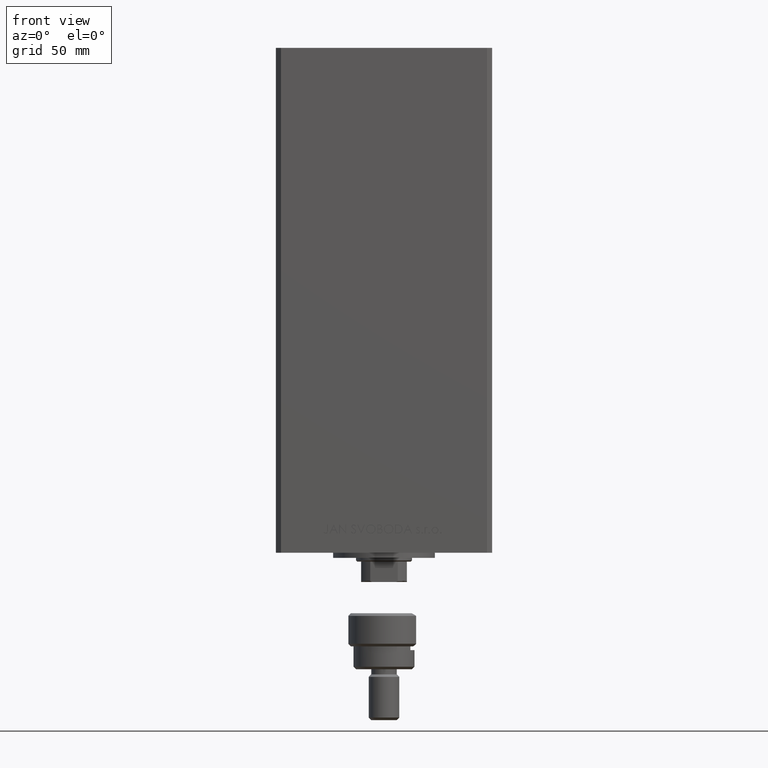
[diagram: clean part render]
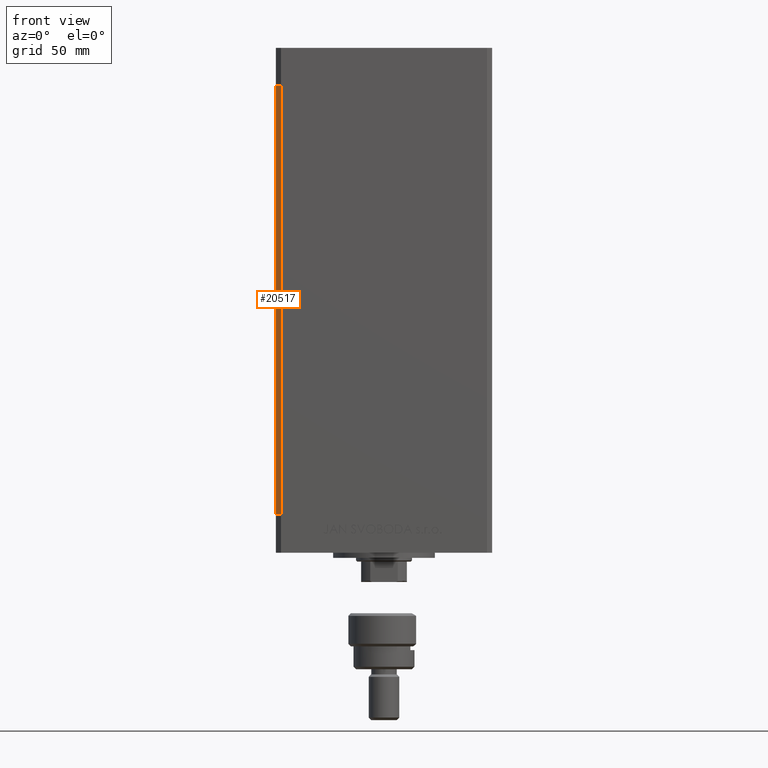
[diagram: same view with one face highlighted and labeled with its STEP entity id]
A machine part, front view. The second image highlights one B-rep face of the part: STEP entity #20517.
In plain terms, the highlighted planar face has unit normal (0.7071, 0.7071, 0).
Its self-contained STEP definition (entity closure, byte-faithful):
#534 = LINE ( 'NONE', #39039, #30263 ) ;
#1389 = LINE ( 'NONE', #12853, #33489 ) ;
#2042 = CARTESIAN_POINT ( 'NONE',  ( -42.49999999999998579, -35.50000000000000711, 0.000000000000000000 ) ) ;
#6213 = CARTESIAN_POINT ( 'NONE',  ( -42.49999999999998579, -35.50000000000000711, 168.5000000000000000 ) ) ;
#7376 = ORIENTED_EDGE ( 'NONE', *, *, #19854, .T. ) ;
#8067 = DIRECTION ( 'NONE',  ( -0.7071067811865474617, 0.7071067811865474617, 0.000000000000000000 ) ) ;
#10337 = DIRECTION ( 'NONE',  ( -0.000000000000000000, -0.000000000000000000, -1.000000000000000000 ) ) ;
#10727 = AXIS2_PLACEMENT_3D ( 'NONE', #47077, #42514, #8067 ) ;
#12853 = CARTESIAN_POINT ( 'NONE',  ( -42.49999999999998579, -35.50000000000000711, 0.000000000000000000 ) ) ;
#16432 = DIRECTION ( 'NONE',  ( 0.7071067811865474617, -0.7071067811865474617, 0.000000000000000000 ) ) ;
#16741 = VERTEX_POINT ( 'NONE', #47174 ) ;
#17801 = VERTEX_POINT ( 'NONE', #28112 ) ;
#19290 = VERTEX_POINT ( 'NONE', #25504 ) ;
#19657 = DIRECTION ( 'NONE',  ( -0.000000000000000000, -0.000000000000000000, -1.000000000000000000 ) ) ;
#19854 = EDGE_CURVE ( 'NONE', #19290, #23136, #534, .T. ) ;
#20517 = ADVANCED_FACE ( 'NONE', ( #23856 ), #38674, .F. ) ;
#23136 = VERTEX_POINT ( 'NONE', #2042 ) ;
#23856 = FACE_OUTER_BOUND ( 'NONE', #44372, .T. ) ;
#23892 = VECTOR ( 'NONE', #29916, 1000.000000000000114 ) ;
#25504 = CARTESIAN_POINT ( 'NONE',  ( -42.49999999999998579, -35.50000000000000711, 168.5000000000000000 ) ) ;
#25585 = LINE ( 'NONE', #6213, #23892 ) ;
#28112 = CARTESIAN_POINT ( 'NONE',  ( -40.49999999999998579, -37.50000000000000711, 168.5000000000000000 ) ) ;
#29916 = DIRECTION ( 'NONE',  ( 0.7071067811865474617, -0.7071067811865474617, 0.000000000000000000 ) ) ;
#30263 = VECTOR ( 'NONE', #19657, 1000.000000000000000 ) ;
#33489 = VECTOR ( 'NONE', #16432, 1000.000000000000114 ) ;
#34031 = ORIENTED_EDGE ( 'NONE', *, *, #46529, .F. ) ;
#35108 = EDGE_CURVE ( 'NONE', #23136, #16741, #1389, .T. ) ;
#37368 = LINE ( 'NONE', #45276, #37811 ) ;
#37811 = VECTOR ( 'NONE', #10337, 1000.000000000000000 ) ;
#38674 = PLANE ( 'NONE',  #10727 ) ;
#38840 = ORIENTED_EDGE ( 'NONE', *, *, #41685, .F. ) ;
#39039 = CARTESIAN_POINT ( 'NONE',  ( -42.49999999999998579, -35.50000000000000711, 168.5000000000000000 ) ) ;
#40323 = ORIENTED_EDGE ( 'NONE', *, *, #35108, .T. ) ;
#41685 = EDGE_CURVE ( 'NONE', #19290, #17801, #25585, .T. ) ;
#42514 = DIRECTION ( 'NONE',  ( 0.7071067811865475727, 0.7071067811865475727, -0.000000000000000000 ) ) ;
#44372 = EDGE_LOOP ( 'NONE', ( #40323, #34031, #38840, #7376 ) ) ;
#45276 = CARTESIAN_POINT ( 'NONE',  ( -40.49999999999998579, -37.50000000000000711, 168.5000000000000000 ) ) ;
#46529 = EDGE_CURVE ( 'NONE', #17801, #16741, #37368, .T. ) ;
#47077 = CARTESIAN_POINT ( 'NONE',  ( -42.49999999999998579, -35.50000000000000711, 168.5000000000000000 ) ) ;
#47174 = CARTESIAN_POINT ( 'NONE',  ( -40.49999999999998579, -37.50000000000000711, 0.000000000000000000 ) ) ;